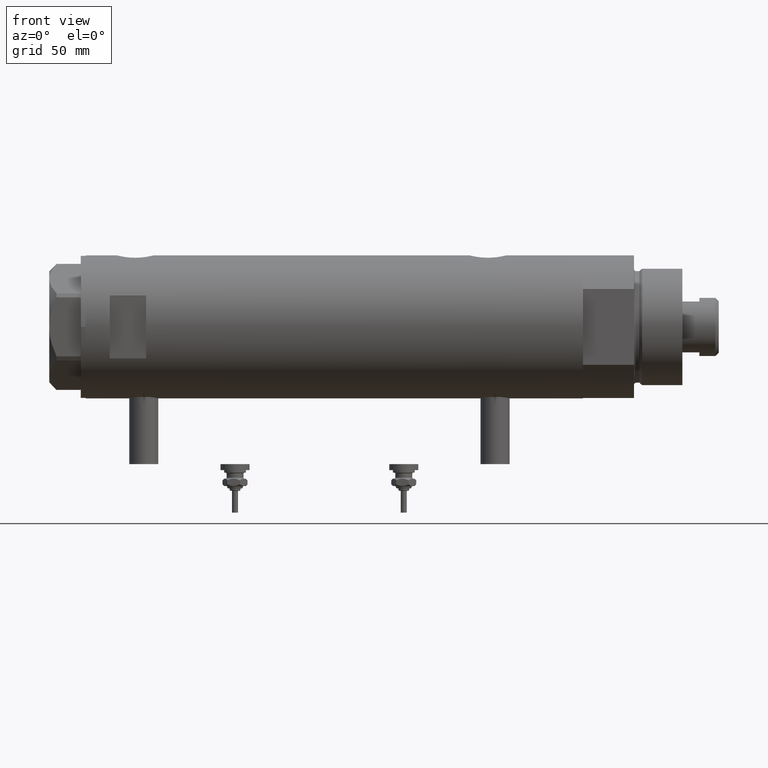
[diagram: clean part render]
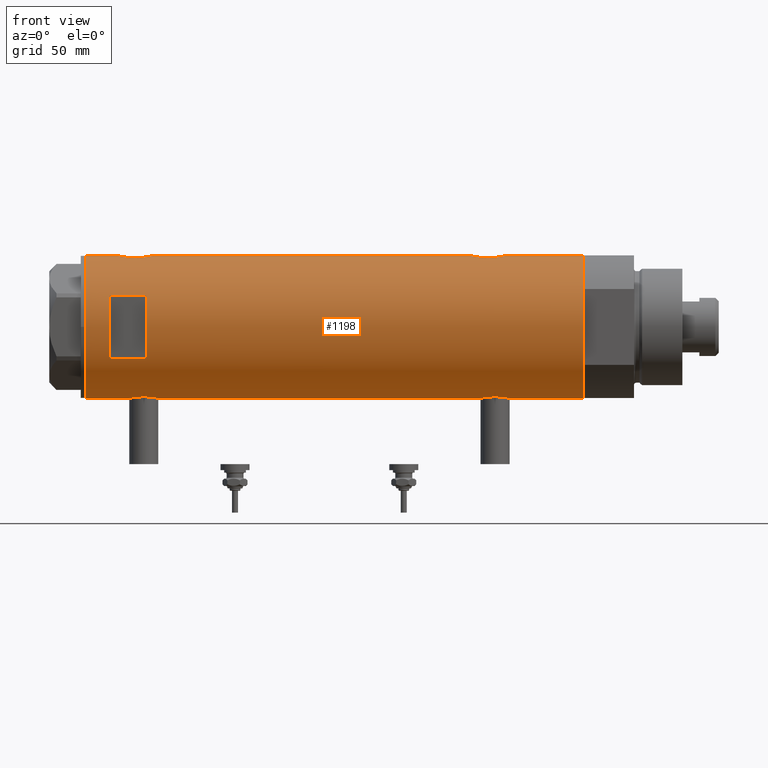
[diagram: same view with one face highlighted and labeled with its STEP entity id]
A machine part, front view. The second image highlights one B-rep face of the part: STEP entity #1198.
In plain terms, the highlighted cylindrical surface (partial cylindrical patch) has radius 29.5 mm, axis along (-1, -0, 0).
Its self-contained STEP definition (entity closure, byte-faithful):
#12 = B_SPLINE_CURVE_WITH_KNOTS ( 'NONE', 3,
 ( #5860, #5826, #4892, #5441, #1344, #5024, #5895, #3155, #4472, #450, #2257, #4564, #4435, #2166, #3972, #2905, #1435, #5086, #5056, #1082, #953, #4728, #506, #641, #2769, #4698, #2448, #195, #988, #2806, #5561, #1018, #2842, #4665, #1931, #3756, #5598, #1499, #3322, #1052, #2875, #4229, #1964, #4886 ),
 .UNSPECIFIED., .F., .F.,
 ( 4, 2, 2, 2, 2, 2, 2, 2, 2, 2, 2, 2, 2, 2, 2, 2, 2, 2, 2, 2, 2, 4 ),
 ( 0.02354540741801909587, 0.02501659793198023757, 0.02648778844594137927, 0.02722338370292194665, 0.02795897895990251403, 0.02943016947386364879, 0.03016576473084422311, 0.03090135998782480090, 0.03237255050178593219, 0.03384374101574706695, 0.03457933627272764820, 0.03531493152970824334, 0.03678612204366940586, 0.03825731255763055449, 0.03972850307159171007, 0.04046409832857227051, 0.04119969358555283095, 0.04193528884253339140, 0.04267088409951395184, 0.04414207461347504496, 0.04561326512743613809, 0.04708445564139723122 ),
 .UNSPECIFIED. ) ;
#14 = CARTESIAN_POINT ( 'NONE',  ( -28.99772237063717739, -5.425436006677727185, 81.72962674552640294 ) ) ;
#33 = CARTESIAN_POINT ( 'NONE',  ( 12.96148139681573319, -26.49999999999998934, 77.59999999999996589 ) ) ;
#83 = CARTESIAN_POINT ( 'NONE',  ( -29.25361239466580798, -3.820294933898100709, 83.56357989714041423 ) ) ;
#133 = CARTESIAN_POINT ( 'NONE',  ( 29.50000000000000355, 0.000000000000000000, -102.5999999999999943 ) ) ;
#145 = DIRECTION ( 'NONE',  ( 1.000000000000000000, 0.000000000000000000, 0.000000000000000000 ) ) ;
#177 = CARTESIAN_POINT ( 'NONE',  ( 28.86327882047615390, -6.097569254709699571, 86.47367090911447463 ) ) ;
#194 = ORIENTED_EDGE ( 'NONE', *, *, #1829, .F. ) ;
#195 = CARTESIAN_POINT ( 'NONE',  ( 28.72051071455670623, -6.739402597165503828, -66.72718973703749157 ) ) ;
#270 = CARTESIAN_POINT ( 'NONE',  ( -12.96148139681573319, -26.49999999999998934, 77.59999999999996589 ) ) ;
#318 = DIRECTION ( 'NONE',  ( 0.000000000000000000, 0.000000000000000000, 1.000000000000000000 ) ) ;
#319 = CARTESIAN_POINT ( 'NONE',  ( 29.26166309680877475, -3.765013078516723066, 75.59489767946935501 ) ) ;
#340 = CARTESIAN_POINT ( 'NONE',  ( -29.45566469296798928, -1.628675872921106160, -60.26243967371323862 ) ) ;
#393 = CARTESIAN_POINT ( 'NONE',  ( -29.33428005013168871, -3.127775714777726979, -71.71493203872593369 ) ) ;
#405 = CARTESIAN_POINT ( 'NONE',  ( -29.50000000000000355, 3.612708057484692393E-15, -102.5999999999999943 ) ) ;
#410 = CARTESIAN_POINT ( 'NONE',  ( -28.99856997507319534, -5.420860550814436074, 75.46276987854201934 ) ) ;
#450 = CARTESIAN_POINT ( 'NONE',  ( 29.14531914445116811, -4.579221598645975000, -57.44009767007188572 ) ) ;
#498 = EDGE_CURVE ( 'NONE', #3908, #5289, #4028, .T. ) ;
#506 = CARTESIAN_POINT ( 'NONE',  ( 28.53070445389874266, -7.499926890973439342, -63.15046579487081146 ) ) ;
#529 = CARTESIAN_POINT ( 'NONE',  ( -29.46613381094001127, -1.427468570127966574, 84.68827540540398502 ) ) ;
#556 = ORIENTED_EDGE ( 'NONE', *, *, #974, .F. ) ;
#571 = CARTESIAN_POINT ( 'NONE',  ( 29.50000000000000355, -8.867907290838723877E-21, -55.89999999999997016 ) ) ;
#589 = CARTESIAN_POINT ( 'NONE',  ( 29.05028789344173035, -5.134328181356801579, 76.62753542393731720 ) ) ;
#599 = CARTESIAN_POINT ( 'NONE',  ( -29.50000000000000355, -5.649958391113855330E-16, 84.85000000000000853 ) ) ;
#620 = CARTESIAN_POINT ( 'NONE',  ( 28.89374847711160754, -5.952001739005070569, 77.53016018920365582 ) ) ;
#633 = ORIENTED_EDGE ( 'NONE', *, *, #5820, .T. ) ;
#641 = CARTESIAN_POINT ( 'NONE',  ( 28.53064705443909332, -7.500145243772297299, -63.89244703291116423 ) ) ;
#662 = VECTOR ( 'NONE', #318, 1000.000000000000000 ) ;
#665 = AXIS2_PLACEMENT_3D ( 'NONE', #5646, #1036, #145 ) ;
#681 = CARTESIAN_POINT ( 'NONE',  ( 28.53399451186754732, -7.487442594623194836, 82.59897485501112158 ) ) ;
#686 = CARTESIAN_POINT ( 'NONE',  ( -28.96072448608915195, -5.617106371651702013, -63.52917268339557211 ) ) ;
#752 = CARTESIAN_POINT ( 'NONE',  ( 29.48742104091791205, -0.9879539515379935910, 74.64904301646019746 ) ) ;
#788 = VERTEX_POINT ( 'NONE', #5294 ) ;
#796 = CARTESIAN_POINT ( 'NONE',  ( -29.14490888978863481, -4.565669626908231749, -62.02701820123785126 ) ) ;
#813 = CARTESIAN_POINT ( 'NONE',  ( 29.50000000000000355, -1.919926123348039602E-15, -70.89999999999999147 ) ) ;
#831 = LINE ( 'NONE', #3615, #2320 ) ;
#861 = CARTESIAN_POINT ( 'NONE',  ( -29.38738983524999782, -2.582042051636495028, 72.90464828404618913 ) ) ;
#885 = CARTESIAN_POINT ( 'NONE',  ( -28.83028160285196151, -6.250189016175732526, 79.00967003214680062 ) ) ;
#891 = EDGE_CURVE ( 'NONE', #3104, #3908, #3344, .T. ) ;
#914 = CARTESIAN_POINT ( 'NONE',  ( -28.83909499632370199, -6.209928350489659188, 79.41617781082962324 ) ) ;
#920 = EDGE_CURVE ( 'NONE', #2947, #3179, #1447, .T. ) ;
#945 = CARTESIAN_POINT ( 'NONE',  ( -29.49152014567325253, -0.8152473631539810528, 72.38964705166668523 ) ) ;
#953 = CARTESIAN_POINT ( 'NONE',  ( 28.54678862679669038, -7.438514536388041165, -62.41041725679207985 ) ) ;
#974 = EDGE_CURVE ( 'NONE', #5289, #788, #831, .T. ) ;
#988 = CARTESIAN_POINT ( 'NONE',  ( 28.77424839213763619, -6.509286280845844708, -67.15781251605956470 ) ) ;
#1001 = ORIENTED_EDGE ( 'NONE', *, *, #1748, .F. ) ;
#1003 = EDGE_CURVE ( 'NONE', #1408, #3057, #1786, .T. ) ;
#1009 = CARTESIAN_POINT ( 'NONE',  ( -29.41741605749267308, -2.213861184585004249, 84.44831174451374523 ) ) ;
#1018 = CARTESIAN_POINT ( 'NONE',  ( 28.95592074821772854, -5.641779806288295340, -68.34773495802029686 ) ) ;
#1029 = CARTESIAN_POINT ( 'NONE',  ( 28.59279484545186989, -7.260293545345781752, 80.15593442015527614 ) ) ;
#1032 = ORIENTED_EDGE ( 'NONE', *, *, #891, .F. ) ;
#1036 = DIRECTION ( 'NONE',  ( 0.000000000000000000, 0.000000000000000000, 1.000000000000000000 ) ) ;
#1052 = CARTESIAN_POINT ( 'NONE',  ( 29.40305664607911851, -2.432276947006143164, -70.51147801006587201 ) ) ;
#1064 = CARTESIAN_POINT ( 'NONE',  ( 28.89374408016310269, -5.952042782108800445, 86.66984537025962254 ) ) ;
#1082 = CARTESIAN_POINT ( 'NONE',  ( 28.55627543367307553, -7.402134446380881805, -62.16780349681759787 ) ) ;
#1134 = CARTESIAN_POINT ( 'NONE',  ( -29.50000000000000355, -0.4141077724969879359, -60.04999999999999005 ) ) ;
#1152 = CARTESIAN_POINT ( 'NONE',  ( 29.48775985681159284, -0.9798361908152548594, 89.55230443881325186 ) ) ;
#1198 = ADVANCED_FACE ( 'NONE', ( #4714, #3233 ), #4679, .T. ) ;
#1234 = CARTESIAN_POINT ( 'NONE',  ( -28.83260549167351527, -6.239494599049539403, -66.71615084301799925 ) ) ;
#1251 = CARTESIAN_POINT ( 'NONE',  ( -29.21108587560690495, -4.128853169727751293, -71.00967276909594261 ) ) ;
#1271 = ORIENTED_EDGE ( 'NONE', *, *, #2634, .T. ) ;
#1279 = CARTESIAN_POINT ( 'NONE',  ( -29.50000000000000355, 3.612706708236066082E-15, 72.34999999999999432 ) ) ;
#1323 = ORIENTED_EDGE ( 'NONE', *, *, #4867, .F. ) ;
#1335 = VERTEX_POINT ( 'NONE', #2580 ) ;
#1336 = CARTESIAN_POINT ( 'NONE',  ( -28.85437274499025406, -6.138402965889066643, 77.37243403294918664 ) ) ;
#1344 = CARTESIAN_POINT ( 'NONE',  ( 29.40378957563274653, -2.423455993307770395, -56.28550539884012949 ) ) ;
#1375 = CARTESIAN_POINT ( 'NONE',  ( -29.50000000000000355, 3.612708057484692393E-15, 102.5999999999999943 ) ) ;
#1387 = CARTESIAN_POINT ( 'NONE',  ( -29.37055817176825201, -2.766456155496577196, 72.99186392411090196 ) ) ;
#1389 = LINE ( 'NONE', #1458, #2528 ) ;
#1397 = DIRECTION ( 'NONE',  ( -0.000000000000000000, 0.000000000000000000, -1.000000000000000000 ) ) ;
#1408 = VERTEX_POINT ( 'NONE', #1279 ) ;
#1435 = CARTESIAN_POINT ( 'NONE',  ( 28.72151714661535138, -6.735173278284154463, -60.06359529429123256 ) ) ;
#1447 = B_SPLINE_CURVE_WITH_KNOTS ( 'NONE', 3,
 ( #4991, #1668, #3976, #5831, #3065, #3101, #4932, #393, #4870, #3514, #1251, #2740, #2021, #2984, #2074, #5738, #3482, #1853, #2825, #3924, #1234, #5252, #2519, #4878, #5753, #3954, #686, #1643, #5726, #2032, #2087, #796, #4855, #5781, #4336, #4414, #5338, #2062, #340, #2547, #4365, #1134, #3468 ),
 .UNSPECIFIED., .F., .F.,
 ( 4, 2, 2, 2, 2, 2, 2, 2, 2, 1, 2, 2, 2, 2, 2, 2, 2, 2, 2, 2, 2, 4 ),
 ( 0.01959598605283713324, 0.02082041500883367521, 0.02204484396483021719, 0.02265705844282847950, 0.02326927292082674181, 0.02449370187682326991, 0.02571813083281979800, 0.02694255978881632610, 0.02755477426681458841, 0.02816698874481285420, 0.02877920322281111998, 0.02939141770080938229, 0.03061584665680591039, 0.03184027561280243501, 0.03306470456879896658, 0.03367691904679723236, 0.03428913352479549814, 0.03551356248079203665, 0.03673799143678857515, 0.03735020591478684787, 0.03796242039278512059, 0.03918684934878166604 ),
 .UNSPECIFIED. ) ;
#1458 = CARTESIAN_POINT ( 'NONE',  ( -29.50000000000000355, 3.612708057484692393E-15, -102.5999999999999943 ) ) ;
#1473 = CARTESIAN_POINT ( 'NONE',  ( 28.53070445389873200, -7.499926890973435789, 82.34953420512914590 ) ) ;
#1486 = CARTESIAN_POINT ( 'NONE',  ( -29.45566469296797507, -1.628675872921092616, 84.63756032628675996 ) ) ;
#1499 = CARTESIAN_POINT ( 'NONE',  ( 29.26166309680877831, -3.765013078516706635, -69.90510232053063078 ) ) ;
#1541 = CARTESIAN_POINT ( 'NONE',  ( 28.72151714661535848, -6.735173278284159792, 85.43640470570878165 ) ) ;
#1570 = CARTESIAN_POINT ( 'NONE',  ( 28.86290657878786092, -6.099358034152096764, 77.72869329957393347 ) ) ;
#1615 = DIRECTION ( 'NONE',  ( -0.000000000000000000, -4.625929269271487689E-15, 1.000000000000000000 ) ) ;
#1618 = CARTESIAN_POINT ( 'NONE',  ( -12.96148139681573319, -26.49999999999998934, 92.59999999999999432 ) ) ;
#1643 = CARTESIAN_POINT ( 'NONE',  ( -28.99772237063719160, -5.425436006677736955, -63.17037325447360985 ) ) ;
#1668 = CARTESIAN_POINT ( 'NONE',  ( -29.50000000000000711, -0.4084468586314322081, -72.54999999999999716 ) ) ;
#1681 = LINE ( 'NONE', #4832, #662 ) ;
#1686 = ORIENTED_EDGE ( 'NONE', *, *, #498, .F. ) ;
#1706 = LINE ( 'NONE', #3117, #2459 ) ;
#1748 = EDGE_CURVE ( 'NONE', #5529, #2947, #1389, .T. ) ;
#1786 = B_SPLINE_CURVE_WITH_KNOTS ( 'NONE', 3,
 ( #3171, #3989, #945, #3121, #4953, #861, #1387, #2664, #4584, #4495, #2725, #3204, #2758, #410, #2215, #4018, #5887, #5434, #1336, #3145, #4978, #5008, #885, #914, #2279, #2693, #4082, #14, #3641, #5488, #5044, #5584, #5199, #83, #4614, #5108, #1009, #2829, #1486, #529, #4756, #5139, #599 ),
 .UNSPECIFIED., .F., .F.,
 ( 4, 2, 2, 2, 2, 2, 2, 2, 2, 1, 2, 2, 2, 2, 2, 2, 2, 2, 2, 2, 2, 4 ),
 ( 0.01959598605283711936, 0.02082041500883365093, 0.02204484396483017902, 0.02265705844282843440, 0.02326927292082669324, 0.02449370187682320399, 0.02571813083281971821, 0.02694255978881623242, 0.02755477426681450515, 0.02816698874481278481, 0.02877920322281105753, 0.02939141770080933719, 0.03061584665680588957, 0.03184027561280243501, 0.03306470456879899433, 0.03367691904679726705, 0.03428913352479553978, 0.03551356248079206440, 0.03673799143678858903, 0.03735020591478684787, 0.03796242039278510672, 0.03918684934878163828 ),
 .UNSPECIFIED. ) ;
#1824 = ORIENTED_EDGE ( 'NONE', *, *, #2662, .F. ) ;
#1829 = EDGE_CURVE ( 'NONE', #3810, #5552, #12, .T. ) ;
#1853 = CARTESIAN_POINT ( 'NONE',  ( -28.87532468301956357, -6.038983942005360817, -67.92329367688532216 ) ) ;
#1856 = CIRCLE ( 'NONE', #5223, 29.50000000000000355 ) ;
#1900 = DIRECTION ( 'NONE',  ( 0.000000000000000000, 0.000000000000000000, 1.000000000000000000 ) ) ;
#1921 = DIRECTION ( 'NONE',  ( 1.000000000000000000, 0.000000000000000000, 0.000000000000000000 ) ) ;
#1931 = CARTESIAN_POINT ( 'NONE',  ( 29.08168479815707386, -4.954011967599724287, -69.03627368515267904 ) ) ;
#1964 = CARTESIAN_POINT ( 'NONE',  ( 29.49999999999999645, -0.4976091310423233494, -70.89999999999997726 ) ) ;
#1965 = VECTOR ( 'NONE', #3292, 1000.000000000000000 ) ;
#1974 = CARTESIAN_POINT ( 'NONE',  ( 28.54347630091233512, -7.451827970232800524, 81.11943218216039497 ) ) ;
#1979 = CARTESIAN_POINT ( 'NONE',  ( 0.000000000000000000, 0.000000000000000000, -102.5999999999999943 ) ) ;
#2001 = CARTESIAN_POINT ( 'NONE',  ( 29.14531914445117877, -4.579221598645971447, 88.05990232992807876 ) ) ;
#2021 = CARTESIAN_POINT ( 'NONE',  ( -29.07948744859177381, -4.968520850090771823, -70.11336367378893897 ) ) ;
#2032 = CARTESIAN_POINT ( 'NONE',  ( -29.08006251441183920, -4.961575945539737909, -62.49381497947477015 ) ) ;
#2062 = CARTESIAN_POINT ( 'NONE',  ( -29.43130053621386821, -2.021711243143699654, -60.38244954039819845 ) ) ;
#2067 = CARTESIAN_POINT ( 'NONE',  ( 29.14351131874356682, -4.576283785862482745, 76.15294675151480419 ) ) ;
#2074 = CARTESIAN_POINT ( 'NONE',  ( -28.96147498926091401, -5.613273026676368183, -69.07892698342581639 ) ) ;
#2087 = CARTESIAN_POINT ( 'NONE',  ( -29.12311479234994849, -4.702282052053745609, -62.17776471113518966 ) ) ;
#2129 = LINE ( 'NONE', #3970, #4141 ) ;
#2166 = CARTESIAN_POINT ( 'NONE',  ( 28.89374408016310269, -5.952042782108800445, -58.83015462974032062 ) ) ;
#2182 = CARTESIAN_POINT ( 'NONE',  ( 29.43916859571211830, -1.954329820671505402, 74.84235520757910365 ) ) ;
#2205 = B_SPLINE_CURVE_WITH_KNOTS ( 'NONE', 3,
 ( #4303, #3733, #1152, #3385, #2462, #2887, #4676, #2513, #4275, #2001, #2945, #2429, #5162, #1064, #177, #4710, #1541, #3820, #5667, #5572, #2962, #681, #1473, #3770, #1974, #1029, #3295, #5693, #5130, #1570, #620, #3358, #2855, #589, #2527, #2067, #4884, #319, #3005, #5344, #2182, #752, #5789, #4370 ),
 .UNSPECIFIED., .F., .F.,
 ( 4, 2, 2, 2, 2, 2, 2, 2, 2, 2, 2, 2, 2, 2, 2, 2, 2, 2, 2, 2, 2, 4 ),
 ( 0.02354540741801909587, 0.02501659793198026879, 0.02648778844594144172, 0.02722338370292202298, 0.02795897895990260076, 0.02943016947386375981, 0.03016576473084434107, 0.03090135998782492233, 0.03237255050178604321, 0.03384374101574717103, 0.03457933627272773841, 0.03531493152970829885, 0.03678612204366942667, 0.03825731255763055449, 0.03972850307159167538, 0.04046409832857222888, 0.04119969358555276850, 0.04193528884253332201, 0.04267088409951386857, 0.04414207461347498251, 0.04561326512743610340, 0.04708445564139722428 ),
 .UNSPECIFIED. ) ;
#2215 = CARTESIAN_POINT ( 'NONE',  ( -28.96147498926092112, -5.613273026676368183, 75.82107301657420351 ) ) ;
#2253 = CIRCLE ( 'NONE', #665, 29.50000000000000355 ) ;
#2257 = CARTESIAN_POINT ( 'NONE',  ( 29.08294968506023181, -4.955368226349209593, -57.74903281801530142 ) ) ;
#2279 = CARTESIAN_POINT ( 'NONE',  ( -28.87288655002252113, -6.050870399762838581, 80.21750540721806999 ) ) ;
#2280 = ORIENTED_EDGE ( 'NONE', *, *, #4239, .T. ) ;
#2320 = VECTOR ( 'NONE', #5410, 1000.000000000000000 ) ;
#2339 = DIRECTION ( 'NONE',  ( 0.000000000000000000, 0.000000000000000000, 1.000000000000000000 ) ) ;
#2429 = CARTESIAN_POINT ( 'NONE',  ( 28.98816846638396427, -5.474212100855884167, 87.23252159883304557 ) ) ;
#2432 = ORIENTED_EDGE ( 'NONE', *, *, #2473, .F. ) ;
#2444 = CARTESIAN_POINT ( 'NONE',  ( -12.96148139681573319, -26.49999999999999645, -102.5999999999999943 ) ) ;
#2448 = CARTESIAN_POINT ( 'NONE',  ( 28.62983003203745014, -7.114781472982452115, -65.82273058853736813 ) ) ;
#2459 = VECTOR ( 'NONE', #3031, 1000.000000000000000 ) ;
#2462 = CARTESIAN_POINT ( 'NONE',  ( 29.40378957563274653, -2.423455993307769507, 89.21449460115985630 ) ) ;
#2473 = EDGE_CURVE ( 'NONE', #3510, #4284, #2205, .T. ) ;
#2482 = DIRECTION ( 'NONE',  ( 1.776356839400250267E-15, 1.000000000000000000, 4.704334850106595203E-15 ) ) ;
#2513 = CARTESIAN_POINT ( 'NONE',  ( 29.26065241255351523, -3.756597382275449704, 88.59604434819190999 ) ) ;
#2519 = CARTESIAN_POINT ( 'NONE',  ( -28.83028160285196506, -6.250189016175740520, -65.89032996785323348 ) ) ;
#2527 = CARTESIAN_POINT ( 'NONE',  ( 29.08168479815708096, -4.954011967599733168, 76.46372631484730675 ) ) ;
#2528 = VECTOR ( 'NONE', #4687, 1000.000000000000000 ) ;
#2547 = CARTESIAN_POINT ( 'NONE',  ( -29.46613381094002193, -1.427468570127975456, -60.21172459459602777 ) ) ;
#2580 = CARTESIAN_POINT ( 'NONE',  ( 29.50000000000000355, 0.000000000000000000, 102.5999999999999943 ) ) ;
#2634 = EDGE_CURVE ( 'NONE', #3810, #4284, #2129, .T. ) ;
#2662 = EDGE_CURVE ( 'NONE', #788, #3104, #1856, .T. ) ;
#2664 = CARTESIAN_POINT ( 'NONE',  ( -29.33428005013168871, -3.127775714777721650, 73.18506796127408620 ) ) ;
#2693 = CARTESIAN_POINT ( 'NONE',  ( -28.89828397447510966, -5.929977241120605314, 80.61611952241997869 ) ) ;
#2725 = CARTESIAN_POINT ( 'NONE',  ( -29.21108587560690495, -4.128853169727745964, 73.89032723090410570 ) ) ;
#2738 = CIRCLE ( 'NONE', #3418, 29.50000000000000355 ) ;
#2740 = CARTESIAN_POINT ( 'NONE',  ( -29.12379578281188230, -4.705261494361433705, -70.43387957720274528 ) ) ;
#2758 = CARTESIAN_POINT ( 'NONE',  ( -29.07948744859177381, -4.968520850090764718, 74.78663632621106672 ) ) ;
#2769 = CARTESIAN_POINT ( 'NONE',  ( 28.54347630091233512, -7.451827970232803189, -64.38056781783956239 ) ) ;
#2802 = CARTESIAN_POINT ( 'NONE',  ( 0.000000000000000000, 0.000000000000000000, 92.59999999999999432 ) ) ;
#2806 = CARTESIAN_POINT ( 'NONE',  ( 28.86290657878785026, -6.099358034152094099, -67.77130670042603811 ) ) ;
#2811 = LINE ( 'NONE', #133, #5652 ) ;
#2814 = LINE ( 'NONE', #405, #1965 ) ;
#2825 = CARTESIAN_POINT ( 'NONE',  ( -28.85437274499025406, -6.138402965889072860, -67.52756596705081904 ) ) ;
#2829 = CARTESIAN_POINT ( 'NONE',  ( -29.43130053621386111, -2.021711243143688108, 84.51755045960183566 ) ) ;
#2835 = DIRECTION ( 'NONE',  ( 1.000000000000000000, 0.000000000000000000, 0.000000000000000000 ) ) ;
#2842 = CARTESIAN_POINT ( 'NONE',  ( 28.98740664105172016, -5.478212189394670695, -68.52819516185790860 ) ) ;
#2855 = CARTESIAN_POINT ( 'NONE',  ( 28.98740664105171660, -5.478212189394670695, 76.97180483814203455 ) ) ;
#2875 = CARTESIAN_POINT ( 'NONE',  ( 29.43916859571211120, -1.954329820671502516, -70.65764479242088214 ) ) ;
#2876 = EDGE_CURVE ( 'NONE', #3179, #1408, #2814, .T. ) ;
#2887 = CARTESIAN_POINT ( 'NONE',  ( 29.33743940633121028, -3.100990836771693626, 88.93327512439064719 ) ) ;
#2905 = CARTESIAN_POINT ( 'NONE',  ( 28.77541267587657714, -6.504036106227648162, -59.63371449864082052 ) ) ;
#2927 = CARTESIAN_POINT ( 'NONE',  ( 29.50000000000000355, 0.000000000000000000, -102.5999999999999943 ) ) ;
#2945 = CARTESIAN_POINT ( 'NONE',  ( 29.08294968506024247, -4.955368226349214034, 87.75096718198464885 ) ) ;
#2947 = VERTEX_POINT ( 'NONE', #3797 ) ;
#2962 = CARTESIAN_POINT ( 'NONE',  ( 28.54678862679668327, -7.438514536388042053, 83.08958274320788462 ) ) ;
#2984 = CARTESIAN_POINT ( 'NONE',  ( -28.99856997507318823, -5.420860550814443179, -69.43723012145801476 ) ) ;
#3005 = CARTESIAN_POINT ( 'NONE',  ( 29.31438578683259877, -3.335040812377236819, 75.36452723156224920 ) ) ;
#3018 = CARTESIAN_POINT ( 'NONE',  ( -29.50000000000000355, -5.649958391113855330E-16, 84.85000000000000853 ) ) ;
#3021 = CARTESIAN_POINT ( 'NONE',  ( -29.50000000000000355, 3.612708057484692393E-15, -102.5999999999999943 ) ) ;
#3031 = DIRECTION ( 'NONE',  ( 0.000000000000000000, 0.000000000000000000, 1.000000000000000000 ) ) ;
#3057 = VERTEX_POINT ( 'NONE', #3018 ) ;
#3065 = CARTESIAN_POINT ( 'NONE',  ( -29.43333839972901345, -2.017691896334584012, -72.22935989047843464 ) ) ;
#3101 = CARTESIAN_POINT ( 'NONE',  ( -29.38738983524999782, -2.582042051636505686, -71.99535171595380234 ) ) ;
#3104 = VERTEX_POINT ( 'NONE', #1618 ) ;
#3117 = CARTESIAN_POINT ( 'NONE',  ( 29.50000000000000355, 0.000000000000000000, -102.5999999999999943 ) ) ;
#3121 = CARTESIAN_POINT ( 'NONE',  ( -29.45797511864983420, -1.625450914296656002, 72.55094872469950928 ) ) ;
#3132 = CARTESIAN_POINT ( 'NONE',  ( -29.50000000000000355, -1.590035304987910071E-15, -60.04999999999999005 ) ) ;
#3145 = CARTESIAN_POINT ( 'NONE',  ( -28.84137202824162571, -6.198846007008988579, 77.77611738876129266 ) ) ;
#3155 = CARTESIAN_POINT ( 'NONE',  ( 29.26065241255351168, -3.756597382275448371, -56.90395565180807580 ) ) ;
#3171 = CARTESIAN_POINT ( 'NONE',  ( -29.50000000000000355, 3.612706708236066082E-15, 72.34999999999999432 ) ) ;
#3179 = VERTEX_POINT ( 'NONE', #3132 ) ;
#3204 = CARTESIAN_POINT ( 'NONE',  ( -29.12379578281188230, -4.705261494361423935, 74.46612042279726040 ) ) ;
#3233 = FACE_BOUND ( 'NONE', #5715, .T. ) ;
#3292 = DIRECTION ( 'NONE',  ( 0.000000000000000000, 0.000000000000000000, 1.000000000000000000 ) ) ;
#3295 = CARTESIAN_POINT ( 'NONE',  ( 28.62983003203745369, -7.114781472982449451, 79.67726941146258923 ) ) ;
#3298 = AXIS2_PLACEMENT_3D ( 'NONE', #3889, #1615, #2482 ) ;
#3322 = CARTESIAN_POINT ( 'NONE',  ( 29.31438578683261298, -3.335040812377227049, -70.13547276843773659 ) ) ;
#3344 = LINE ( 'NONE', #2444, #4416 ) ;
#3358 = CARTESIAN_POINT ( 'NONE',  ( 28.95592074821772854, -5.641779806288306887, 77.15226504197966051 ) ) ;
#3385 = CARTESIAN_POINT ( 'NONE',  ( 29.43922820968271736, -1.954457150219037542, 89.35789347245771808 ) ) ;
#3418 = AXIS2_PLACEMENT_3D ( 'NONE', #4183, #2339, #1921 ) ;
#3468 = CARTESIAN_POINT ( 'NONE',  ( -29.50000000000000355, -1.590035304987910071E-15, -60.04999999999999005 ) ) ;
#3482 = CARTESIAN_POINT ( 'NONE',  ( -28.89999183068148270, -5.919812056825926483, -68.31500238835417349 ) ) ;
#3510 = VERTEX_POINT ( 'NONE', #5263 ) ;
#3514 = CARTESIAN_POINT ( 'NONE',  ( -29.25427426731712899, -3.815048240656443657, -71.26740768153337058 ) ) ;
#3615 = CARTESIAN_POINT ( 'NONE',  ( 12.96148139681573319, -26.49999999999999645, -102.5999999999999943 ) ) ;
#3641 = CARTESIAN_POINT ( 'NONE',  ( -29.05872136210575007, -5.084685578900221437, 82.24009991908759787 ) ) ;
#3733 = CARTESIAN_POINT ( 'NONE',  ( 29.50000000000000355, -0.4905639552620948418, 89.59999999999996589 ) ) ;
#3756 = CARTESIAN_POINT ( 'NONE',  ( 29.14351131874355971, -4.576283785862469422, -69.34705324848518160 ) ) ;
#3770 = CARTESIAN_POINT ( 'NONE',  ( 28.53064705443909688, -7.500145243772297299, 81.60755296708880735 ) ) ;
#3797 = CARTESIAN_POINT ( 'NONE',  ( -29.50000000000000355, 3.612706708267620518E-15, -72.54999999999999716 ) ) ;
#3810 = VERTEX_POINT ( 'NONE', #571 ) ;
#3820 = CARTESIAN_POINT ( 'NONE',  ( 28.62986945670066774, -7.114680680403743018, 84.52393776006688597 ) ) ;
#3889 = CARTESIAN_POINT ( 'NONE',  ( 0.000000000000000000, 0.000000000000000000, 77.60000000000007958 ) ) ;
#3908 = VERTEX_POINT ( 'NONE', #270 ) ;
#3924 = CARTESIAN_POINT ( 'NONE',  ( -28.84137202824162571, -6.198846007008994796, -67.12388261123875566 ) ) ;
#3932 = EDGE_CURVE ( 'NONE', #3057, #4426, #1681, .T. ) ;
#3934 = EDGE_CURVE ( 'NONE', #5003, #5552, #1706, .T. ) ;
#3954 = CARTESIAN_POINT ( 'NONE',  ( -28.89828397447510966, -5.929977241120613307, -64.28388047758002699 ) ) ;
#3970 = CARTESIAN_POINT ( 'NONE',  ( 29.50000000000000355, 0.000000000000000000, -102.5999999999999943 ) ) ;
#3972 = CARTESIAN_POINT ( 'NONE',  ( 28.86327882047614679, -6.097569254709699571, -59.02632909088548985 ) ) ;
#3976 = CARTESIAN_POINT ( 'NONE',  ( -29.49152014567324542, -0.8152473631539814969, -72.51035294833330624 ) ) ;
#3989 = CARTESIAN_POINT ( 'NONE',  ( -29.50000000000000711, -0.4084468586314294880, 72.34999999999999432 ) ) ;
#4018 = CARTESIAN_POINT ( 'NONE',  ( -28.91427970886710597, -5.849862889315915915, 76.39006866871152113 ) ) ;
#4028 = CIRCLE ( 'NONE', #3298, 29.50000000000000355 ) ;
#4082 = CARTESIAN_POINT ( 'NONE',  ( -28.96072448608914129, -5.617106371651694019, 81.37082731660440515 ) ) ;
#4118 = EDGE_LOOP ( 'NONE', ( #1001, #2280, #4972, #194, #1271, #2432, #633, #1323, #4910, #5089, #5361, #4193 ) ) ;
#4141 = VECTOR ( 'NONE', #5822, 1000.000000000000000 ) ;
#4183 = CARTESIAN_POINT ( 'NONE',  ( 0.000000000000000000, 0.000000000000000000, 102.5999999999999943 ) ) ;
#4193 = ORIENTED_EDGE ( 'NONE', *, *, #920, .F. ) ;
#4214 = DIRECTION ( 'NONE',  ( 0.000000000000000000, 0.000000000000000000, 1.000000000000000000 ) ) ;
#4229 = CARTESIAN_POINT ( 'NONE',  ( 29.48742104091792271, -0.9879539515379904824, -70.85095698353975990 ) ) ;
#4234 = AXIS2_PLACEMENT_3D ( 'NONE', #1979, #4214, #4247 ) ;
#4239 = EDGE_CURVE ( 'NONE', #5529, #5003, #2253, .T. ) ;
#4247 = DIRECTION ( 'NONE',  ( 1.000000000000000000, 0.000000000000000000, 0.000000000000000000 ) ) ;
#4275 = CARTESIAN_POINT ( 'NONE',  ( 29.23250901027694937, -3.968959760999270614, 88.46846017287658981 ) ) ;
#4284 = VERTEX_POINT ( 'NONE', #4364 ) ;
#4303 = CARTESIAN_POINT ( 'NONE',  ( 29.50000000000000355, -8.867907290838723877E-21, 89.59999999999998010 ) ) ;
#4336 = CARTESIAN_POINT ( 'NONE',  ( -29.33479068874800078, -3.136645782783869851, -60.87844745385528711 ) ) ;
#4364 = CARTESIAN_POINT ( 'NONE',  ( 29.50000000000000355, -2.245054425791785664E-15, 74.59999999999996589 ) ) ;
#4365 = CARTESIAN_POINT ( 'NONE',  ( -29.49128673965872949, -0.8227026017531592350, -60.09075558927906968 ) ) ;
#4370 = CARTESIAN_POINT ( 'NONE',  ( 29.50000000000000355, -2.245054425791785664E-15, 74.59999999999996589 ) ) ;
#4414 = CARTESIAN_POINT ( 'NONE',  ( -29.37136442049237672, -2.777615426151009537, -60.68634887377884013 ) ) ;
#4416 = VECTOR ( 'NONE', #5806, 1000.000000000000000 ) ;
#4426 = VERTEX_POINT ( 'NONE', #1375 ) ;
#4435 = CARTESIAN_POINT ( 'NONE',  ( 28.95619957017311563, -5.640369376407885049, -58.45060273509820092 ) ) ;
#4472 = CARTESIAN_POINT ( 'NONE',  ( 29.23250901027694937, -3.968959760999276831, -57.03153982712335335 ) ) ;
#4495 = CARTESIAN_POINT ( 'NONE',  ( -29.25427426731712188, -3.815048240656433887, 73.63259231846663511 ) ) ;
#4564 = CARTESIAN_POINT ( 'NONE',  ( 28.98816846638395717, -5.474212100855879726, -58.26747840116692601 ) ) ;
#4584 = CARTESIAN_POINT ( 'NONE',  ( -29.31475612970062627, -3.305202271067055442, 73.29152131156146766 ) ) ;
#4614 = CARTESIAN_POINT ( 'NONE',  ( -29.33479068874800078, -3.136645782783863190, 84.02155254614470437 ) ) ;
#4665 = CARTESIAN_POINT ( 'NONE',  ( 29.05028789344173035, -5.134328181356800691, -68.87246457606266858 ) ) ;
#4676 = CARTESIAN_POINT ( 'NONE',  ( 29.31311917412635992, -3.322476152549159067, 88.82842985264295521 ) ) ;
#4679 = CYLINDRICAL_SURFACE ( 'NONE', #4234, 29.50000000000000355 ) ;
#4687 = DIRECTION ( 'NONE',  ( 0.000000000000000000, 0.000000000000000000, 1.000000000000000000 ) ) ;
#4698 = CARTESIAN_POINT ( 'NONE',  ( 28.59279484545185923, -7.260293545345786193, -65.34406557984468122 ) ) ;
#4710 = CARTESIAN_POINT ( 'NONE',  ( 28.77541267587656648, -6.504036106227646385, 85.86628550135911553 ) ) ;
#4714 = FACE_OUTER_BOUND ( 'NONE', #4118, .T. ) ;
#4728 = CARTESIAN_POINT ( 'NONE',  ( 28.53399451186755442, -7.487442594623195724, -62.90102514498884290 ) ) ;
#4756 = CARTESIAN_POINT ( 'NONE',  ( -29.49128673965872238, -0.8227026017531463564, 84.80924441072095021 ) ) ;
#4832 = CARTESIAN_POINT ( 'NONE',  ( -29.50000000000000355, 3.612708057484692393E-15, -102.5999999999999943 ) ) ;
#4855 = CARTESIAN_POINT ( 'NONE',  ( -29.21016169868140722, -4.135295259288792380, -61.59609911913490521 ) ) ;
#4867 = EDGE_CURVE ( 'NONE', #4426, #1335, #2738, .T. ) ;
#4870 = CARTESIAN_POINT ( 'NONE',  ( -29.31475612970062272, -3.305202271067065656, -71.60847868843855224 ) ) ;
#4878 = CARTESIAN_POINT ( 'NONE',  ( -28.83909499632369133, -6.209928350489664517, -65.48382218917039665 ) ) ;
#4884 = CARTESIAN_POINT ( 'NONE',  ( 29.17410189149617139, -4.377709617224038396, 76.00524172523977029 ) ) ;
#4886 = CARTESIAN_POINT ( 'NONE',  ( 29.50000000000000355, -1.919926123348039602E-15, -70.89999999999999147 ) ) ;
#4892 = CARTESIAN_POINT ( 'NONE',  ( 29.48775985681159639, -0.9798361908152574129, -55.94769556118672682 ) ) ;
#4910 = ORIENTED_EDGE ( 'NONE', *, *, #3932, .F. ) ;
#4932 = CARTESIAN_POINT ( 'NONE',  ( -29.37055817176824846, -2.766456155496580305, -71.90813607588914635 ) ) ;
#4953 = CARTESIAN_POINT ( 'NONE',  ( -29.43333839972900989, -2.017691896334575130, 72.67064010952158526 ) ) ;
#4972 = ORIENTED_EDGE ( 'NONE', *, *, #3934, .T. ) ;
#4978 = CARTESIAN_POINT ( 'NONE',  ( -28.83260549167351527, -6.239494599049529633, 78.18384915698197801 ) ) ;
#4991 = CARTESIAN_POINT ( 'NONE',  ( -29.50000000000000355, 3.612706708267620518E-15, -72.54999999999999716 ) ) ;
#5003 = VERTEX_POINT ( 'NONE', #2927 ) ;
#5008 = CARTESIAN_POINT ( 'NONE',  ( -28.83034328164762172, -6.249904501012241376, 78.39085460435941854 ) ) ;
#5024 = CARTESIAN_POINT ( 'NONE',  ( 29.33743940633121028, -3.100990836771692738, -56.56672487560931728 ) ) ;
#5044 = CARTESIAN_POINT ( 'NONE',  ( -29.12311479234995915, -4.702282052053731398, 82.72223528886483734 ) ) ;
#5056 = CARTESIAN_POINT ( 'NONE',  ( 28.59337635119607768, -7.258007499531554885, -61.44783774348636030 ) ) ;
#5086 = CARTESIAN_POINT ( 'NONE',  ( 28.62986945670067129, -7.114680680403742130, -60.97606223993307140 ) ) ;
#5089 = ORIENTED_EDGE ( 'NONE', *, *, #1003, .F. ) ;
#5108 = CARTESIAN_POINT ( 'NONE',  ( -29.37136442049237672, -2.777615426151010869, 84.21365112622117977 ) ) ;
#5130 = CARTESIAN_POINT ( 'NONE',  ( 28.77424839213763264, -6.509286280845844708, 78.34218748394037846 ) ) ;
#5139 = CARTESIAN_POINT ( 'NONE',  ( -29.50000000000000000, -0.4141077724969869922, 84.84999999999999432 ) ) ;
#5162 = CARTESIAN_POINT ( 'NONE',  ( 28.95619957017310853, -5.640369376407885937, 87.04939726490175644 ) ) ;
#5199 = CARTESIAN_POINT ( 'NONE',  ( -29.21016169868140366, -4.135295259288786163, 83.30390088086510048 ) ) ;
#5223 = AXIS2_PLACEMENT_3D ( 'NONE', #2802, #1397, #2835 ) ;
#5252 = CARTESIAN_POINT ( 'NONE',  ( -28.83034328164762528, -6.249904501012249369, -66.50914539564061556 ) ) ;
#5263 = CARTESIAN_POINT ( 'NONE',  ( 29.50000000000000355, -8.867907290838723877E-21, 89.59999999999998010 ) ) ;
#5289 = VERTEX_POINT ( 'NONE', #33 ) ;
#5294 = CARTESIAN_POINT ( 'NONE',  ( 12.96148139681573319, -26.49999999999998934, 92.59999999999999432 ) ) ;
#5338 = CARTESIAN_POINT ( 'NONE',  ( -29.41741605749266952, -2.213861184585006914, -60.45168825548628888 ) ) ;
#5344 = CARTESIAN_POINT ( 'NONE',  ( 29.40305664607912917, -2.432276947006154710, 74.98852198993408535 ) ) ;
#5361 = ORIENTED_EDGE ( 'NONE', *, *, #2876, .F. ) ;
#5410 = DIRECTION ( 'NONE',  ( 0.000000000000000000, 0.000000000000000000, 1.000000000000000000 ) ) ;
#5434 = CARTESIAN_POINT ( 'NONE',  ( -28.87532468301956712, -6.038983942005353711, 76.97670632311465511 ) ) ;
#5441 = CARTESIAN_POINT ( 'NONE',  ( 29.43922820968271381, -1.954457150219040429, -56.14210652754223219 ) ) ;
#5488 = CARTESIAN_POINT ( 'NONE',  ( -29.08006251441182854, -4.961575945539721921, 82.40618502052524263 ) ) ;
#5529 = VERTEX_POINT ( 'NONE', #3021 ) ;
#5552 = VERTEX_POINT ( 'NONE', #813 ) ;
#5561 = CARTESIAN_POINT ( 'NONE',  ( 28.89374847711160754, -5.952001739005060799, -67.96983981079635839 ) ) ;
#5572 = CARTESIAN_POINT ( 'NONE',  ( 28.55627543367307553, -7.402134446380880917, 83.33219650318234528 ) ) ;
#5584 = CARTESIAN_POINT ( 'NONE',  ( -29.14490888978864191, -4.565669626908226419, 82.87298179876219706 ) ) ;
#5598 = CARTESIAN_POINT ( 'NONE',  ( 29.17410189149616428, -4.377709617224027738, -69.49475827476021550 ) ) ;
#5646 = CARTESIAN_POINT ( 'NONE',  ( 0.000000000000000000, 0.000000000000000000, -102.5999999999999943 ) ) ;
#5652 = VECTOR ( 'NONE', #1900, 1000.000000000000000 ) ;
#5667 = CARTESIAN_POINT ( 'NONE',  ( 28.59337635119608123, -7.258007499531553108, 84.05216225651358286 ) ) ;
#5693 = CARTESIAN_POINT ( 'NONE',  ( 28.72051071455670979, -6.739402597165495834, 78.77281026296242317 ) ) ;
#5715 = EDGE_LOOP ( 'NONE', ( #1686, #1032, #1824, #556 ) ) ;
#5726 = CARTESIAN_POINT ( 'NONE',  ( -29.05872136210575718, -5.084685578900231206, -62.65990008091243624 ) ) ;
#5738 = CARTESIAN_POINT ( 'NONE',  ( -28.91427970886710597, -5.849862889315917691, -68.50993133128852719 ) ) ;
#5753 = CARTESIAN_POINT ( 'NONE',  ( -28.87288655002252113, -6.050870399762843910, -64.68249459278192148 ) ) ;
#5781 = CARTESIAN_POINT ( 'NONE',  ( -29.25361239466581864, -3.820294933898108258, -61.33642010285960566 ) ) ;
#5789 = CARTESIAN_POINT ( 'NONE',  ( 29.50000000000000711, -0.4976091310423271241, 74.59999999999996589 ) ) ;
#5806 = DIRECTION ( 'NONE',  ( -0.000000000000000000, -0.000000000000000000, -1.000000000000000000 ) ) ;
#5820 = EDGE_CURVE ( 'NONE', #3510, #1335, #2811, .T. ) ;
#5822 = DIRECTION ( 'NONE',  ( 0.000000000000000000, 0.000000000000000000, 1.000000000000000000 ) ) ;
#5826 = CARTESIAN_POINT ( 'NONE',  ( 29.50000000000000355, -0.4905639552620941202, -55.89999999999995595 ) ) ;
#5831 = CARTESIAN_POINT ( 'NONE',  ( -29.45797511864982710, -1.625450914296657112, -72.34905127530043956 ) ) ;
#5860 = CARTESIAN_POINT ( 'NONE',  ( 29.50000000000000355, -8.867907290838723877E-21, -55.89999999999997016 ) ) ;
#5887 = CARTESIAN_POINT ( 'NONE',  ( -28.89999183068148270, -5.919812056825920266, 76.58499761164586062 ) ) ;
#5895 = CARTESIAN_POINT ( 'NONE',  ( 29.31311917412634926, -3.322476152549155071, -56.67157014735702347 ) ) ;